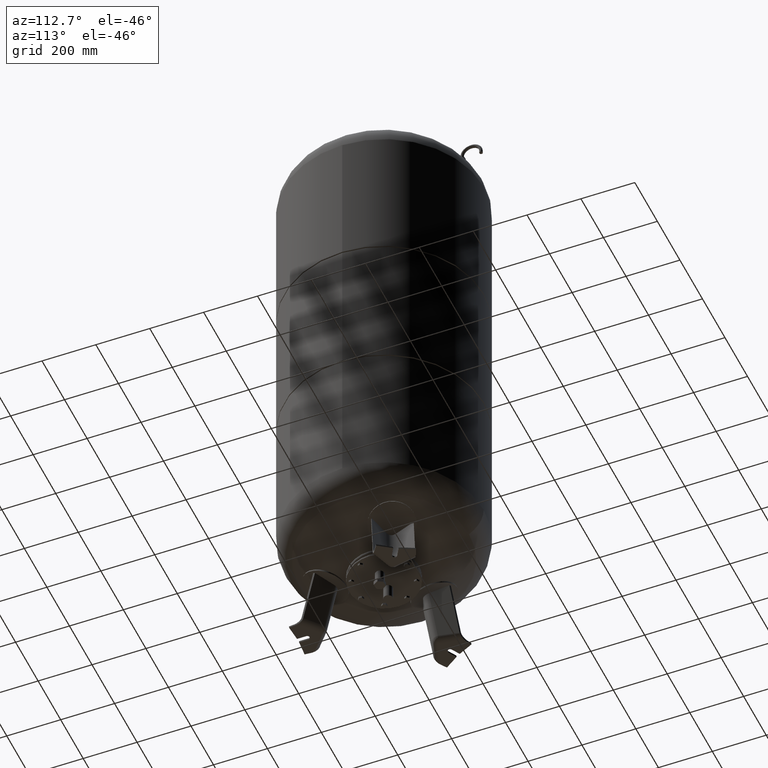
[diagram: clean part render]
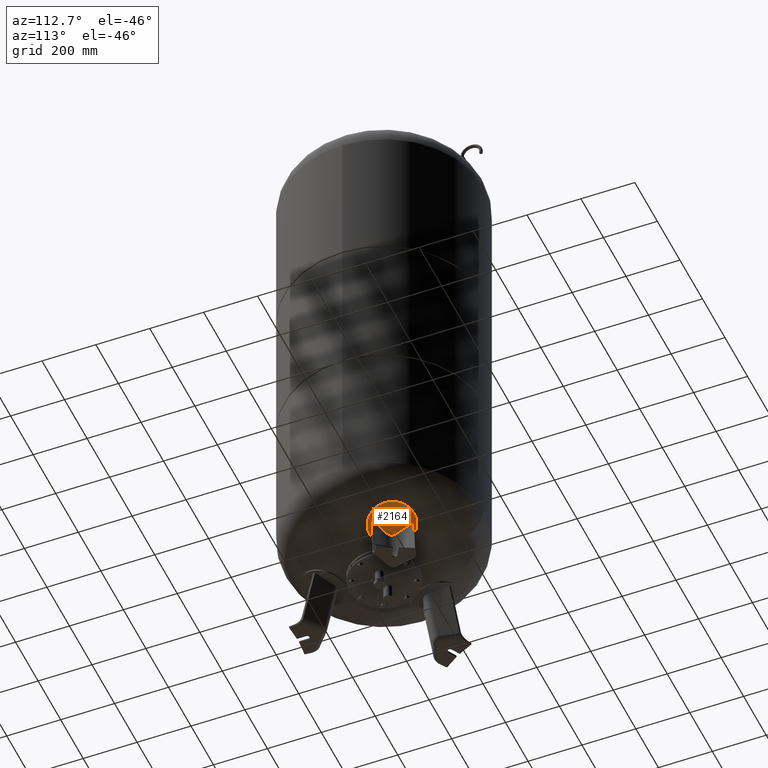
[diagram: same view with one face highlighted and labeled with its STEP entity id]
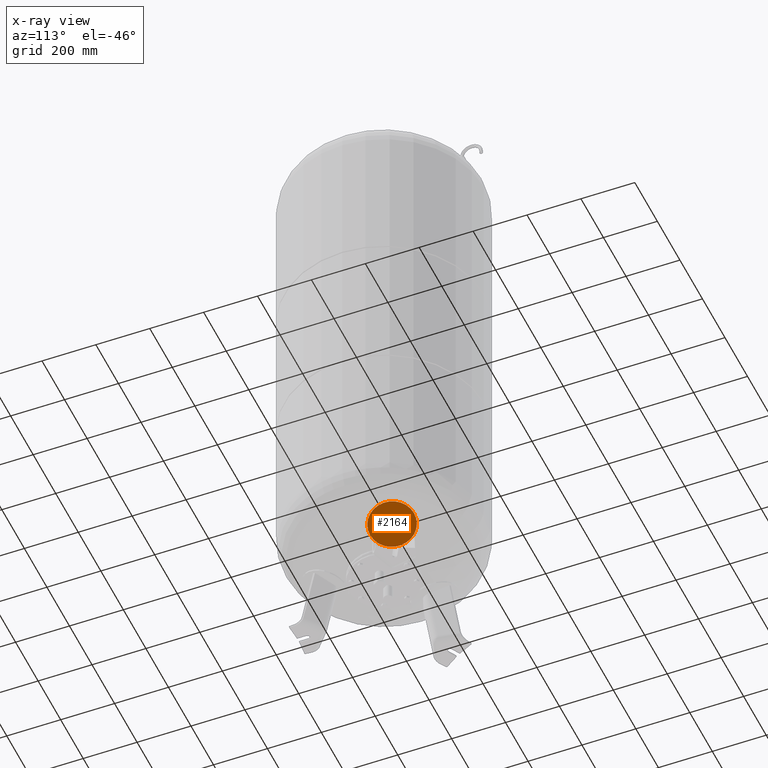
[diagram: x-ray of the same camera — body ghosted, the highlighted face saturated]
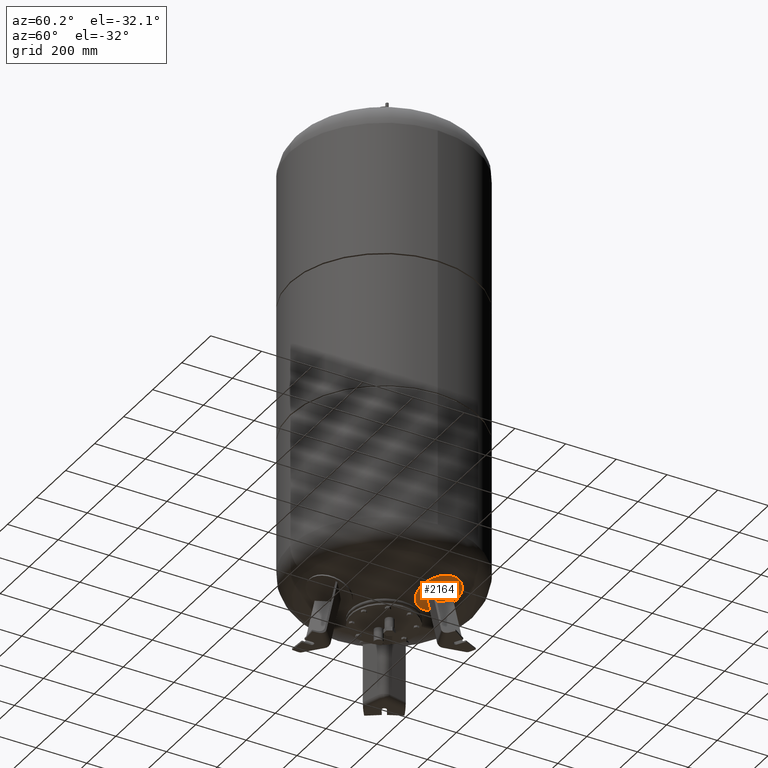
[diagram: same view with one face highlighted and labeled with its STEP entity id]
A machine part, auxiliary view. The second image highlights one B-rep face of the part: STEP entity #2164.
The next image is the same camera in x-ray: the body ghosted, the highlighted face saturated — about 0% of this face is hidden behind the body in this view.
A second angle (auxiliary view) of the same face is appended — the face is thin or edge-on in the first view.
In plain terms, the highlighted spherical surface has radius 594 mm.
Its self-contained STEP definition (entity closure, byte-faithful):
#2072=CARTESIAN_POINT('',(256.769650287754130,148.246026532526680,254.194420566592950));
#2073=VERTEX_POINT('',#2072);
#2082=CARTESIAN_POINT('',(119.323908097931210,68.891690280264527,193.271869143891820));
#2083=VERTEX_POINT('',#2082);
#2084=CARTESIAN_POINT('',(188.046779192842680,108.568858406395590,223.733144855242360));
#2085=DIRECTION('',(0.310355748208370,0.179183974772650,-0.933580426497202));
#2086=DIRECTION('',(0.808504365822488,0.466790213248601,0.358367949545300));
#2087=AXIS2_PLACEMENT_3D('',#2084,#2085,#2086);
#2088=CIRCLE('',#2087,85.0);
#2089=EDGE_CURVE('',#2083,#2073,#2088,.T.);
#2145=CARTESIAN_POINT('',(188.046779192842680,108.568858406395590,223.733144855242360));
#2146=DIRECTION('',(0.310355748208370,0.179183974772650,-0.933580426497202));
#2147=DIRECTION('',(0.808504365822488,0.466790213248601,0.358367949545300));
#2148=AXIS2_PLACEMENT_3D('',#2145,#2146,#2147);
#2149=CIRCLE('',#2148,85.0);
#2150=EDGE_CURVE('',#2073,#2083,#2149,.T.);
#2155=CARTESIAN_POINT('',(5.592702379731719,3.228948043601235,772.572841979124180));
#2156=DIRECTION('',(0.500000000000000,-0.866025403784439,-1.554724E-016));
#2157=DIRECTION('',(0.808504365822488,0.466790213248601,0.358367949545300));
#2158=AXIS2_PLACEMENT_3D('',#2155,#2156,#2157);
#2159=SPHERICAL_SURFACE('',#2158,594.0);
#2160=ORIENTED_EDGE('',*,*,#2150,.T.);
#2161=ORIENTED_EDGE('',*,*,#2089,.T.);
#2162=EDGE_LOOP('',(#2160,#2161));
#2163=FACE_OUTER_BOUND('',#2162,.T.);
#2164=ADVANCED_FACE('',(#2163),#2159,.T.);